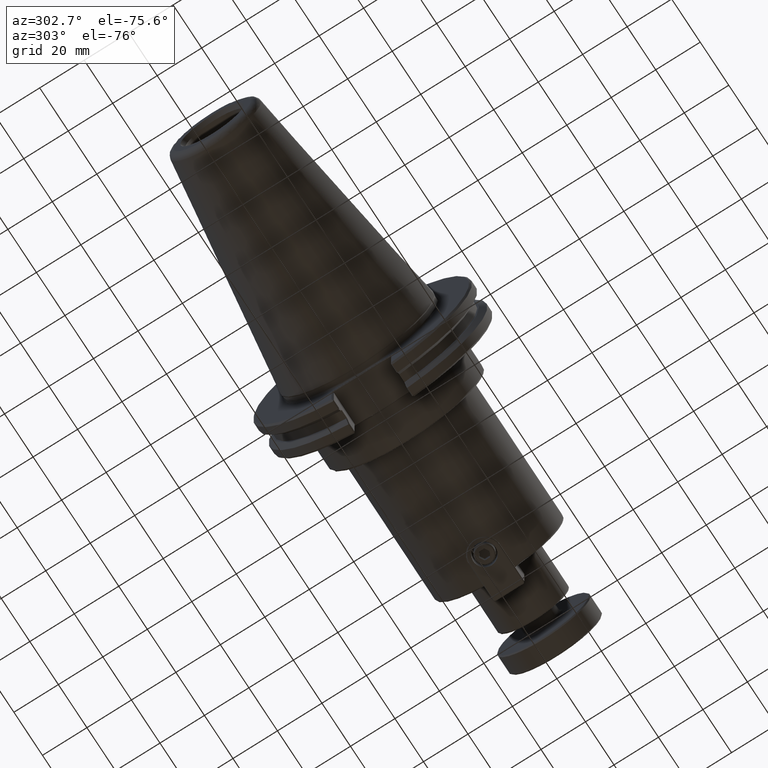
[diagram: clean part render]
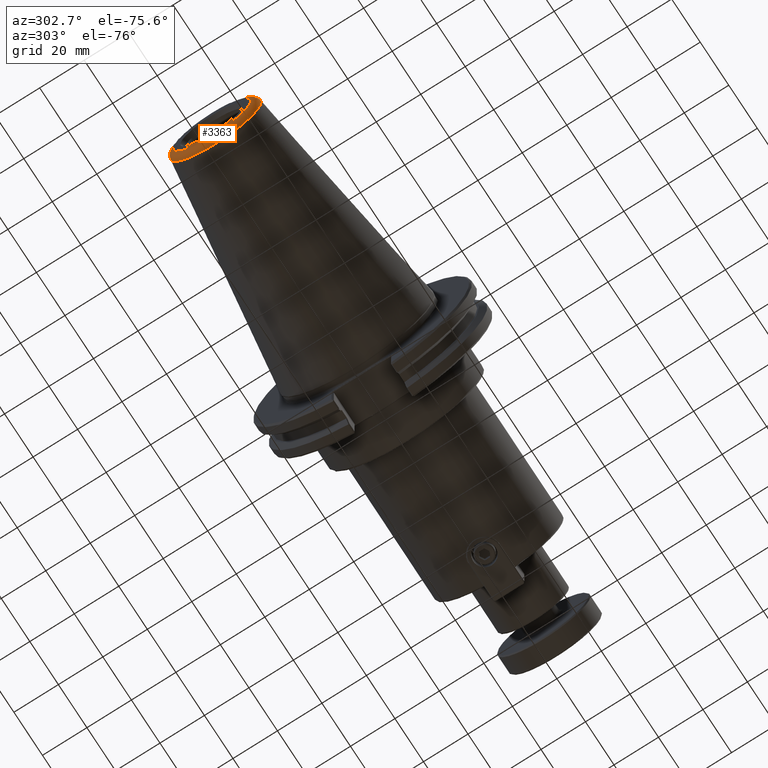
[diagram: same view with one face highlighted and labeled with its STEP entity id]
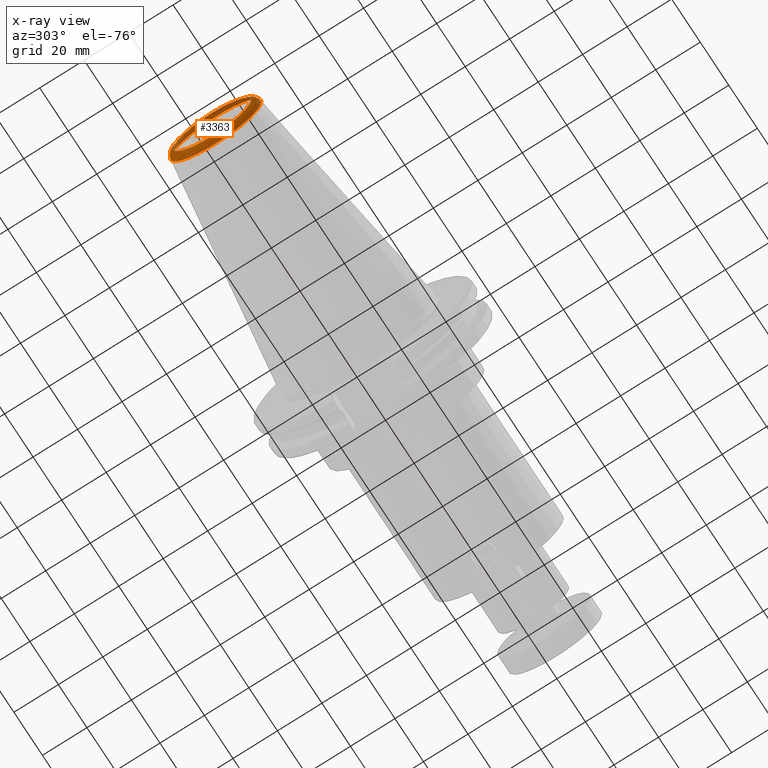
[diagram: x-ray of the same camera — body ghosted, the highlighted face saturated]
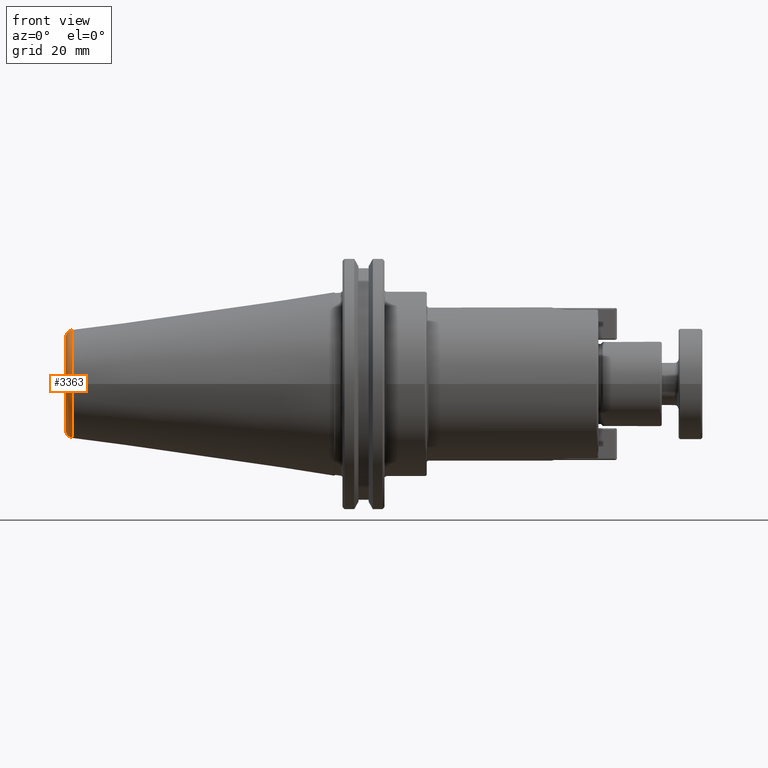
[diagram: same view with one face highlighted and labeled with its STEP entity id]
A machine part, auxiliary view. The second image highlights one B-rep face of the part: STEP entity #3363.
The next image is the same camera in x-ray: the body ghosted, the highlighted face saturated — about 0% of this face is hidden behind the body in this view.
A second angle (front view) of the same face is appended — the face is thin or edge-on in the first view.
In plain terms, the highlighted toroidal blend (fillet) surface has major radius 17.4728 mm and minor (blend) radius 3.048 mm.
Its self-contained STEP definition (entity closure, byte-faithful):
#108=TOROIDAL_SURFACE('',#3815,0.687907409018366,0.12);
#419=FACE_OUTER_BOUND('',#619,.T.);
#619=EDGE_LOOP('',(#2760,#2761,#2762,#2763,#2764));
#810=CIRCLE('',#3816,0.806651410560632);
#811=CIRCLE('',#3817,0.806651410560632);
#812=CIRCLE('',#3818,0.12);
#813=CIRCLE('',#3819,0.687907409018366);
#1530=VERTEX_POINT('',#6705);
#1531=VERTEX_POINT('',#6706);
#1532=VERTEX_POINT('',#6709);
#1965=EDGE_CURVE('',#1530,#1531,#810,.T.);
#1966=EDGE_CURVE('',#1531,#1530,#811,.T.);
#1967=EDGE_CURVE('',#1530,#1532,#812,.T.);
#1968=EDGE_CURVE('',#1532,#1532,#813,.T.);
#2760=ORIENTED_EDGE('',*,*,#1965,.T.);
#2761=ORIENTED_EDGE('',*,*,#1966,.T.);
#2762=ORIENTED_EDGE('',*,*,#1967,.T.);
#2763=ORIENTED_EDGE('',*,*,#1968,.T.);
#2764=ORIENTED_EDGE('',*,*,#1967,.F.);
#3363=ADVANCED_FACE('',(#419),#108,.T.);
#3815=AXIS2_PLACEMENT_3D('',#6704,#4562,#4563);
#3816=AXIS2_PLACEMENT_3D('',#6707,#4564,#4565);
#3817=AXIS2_PLACEMENT_3D('',#6708,#4566,#4567);
#3818=AXIS2_PLACEMENT_3D('',#6710,#4568,#4569);
#3819=AXIS2_PLACEMENT_3D('',#6711,#4570,#4571);
#4562=DIRECTION('center_axis',(1.,0.,0.));
#4563=DIRECTION('ref_axis',(0.,0.,-1.));
#4564=DIRECTION('center_axis',(-1.,-2.60094909854057E-15,3.87529083168744E-29));
#4565=DIRECTION('ref_axis',(2.60094909854057E-15,-1.,1.80477098442361E-30));
#4566=DIRECTION('center_axis',(-1.,-2.60094909854057E-15,3.87529083168744E-29));
#4567=DIRECTION('ref_axis',(2.60094909854057E-15,-1.,1.80477098442361E-30));
#4568=DIRECTION('center_axis',(0.,-1.,-1.22464679914735E-16));
#4569=DIRECTION('ref_axis',(0.,-1.22464679914735E-16,1.));
#4570=DIRECTION('center_axis',(1.,0.,0.));
#4571=DIRECTION('ref_axis',(0.,-1.,1.22460635382238E-16));
#6704=CARTESIAN_POINT('Origin',(-3.88,0.,0.));
#6705=CARTESIAN_POINT('',(-3.89731652672247,-9.87863067970751E-17,0.806651410560632));
#6706=CARTESIAN_POINT('',(-3.8973165267225,-0.806651410560616,-9.87863067970756E-17));
#6707=CARTESIAN_POINT('Origin',(-3.89731652672247,1.18890024684269E-14,
-9.87830442692334E-17));
#6708=CARTESIAN_POINT('Origin',(-3.89731652672247,1.18890024684269E-14,
-9.87830442692334E-17));
#6709=CARTESIAN_POINT('',(-4.,-8.42443606564091E-17,0.687907409018366));
#6710=CARTESIAN_POINT('Origin',(-3.88,-8.42443606564091E-17,0.687907409018366));
#6711=CARTESIAN_POINT('Origin',(-4.,0.,0.));